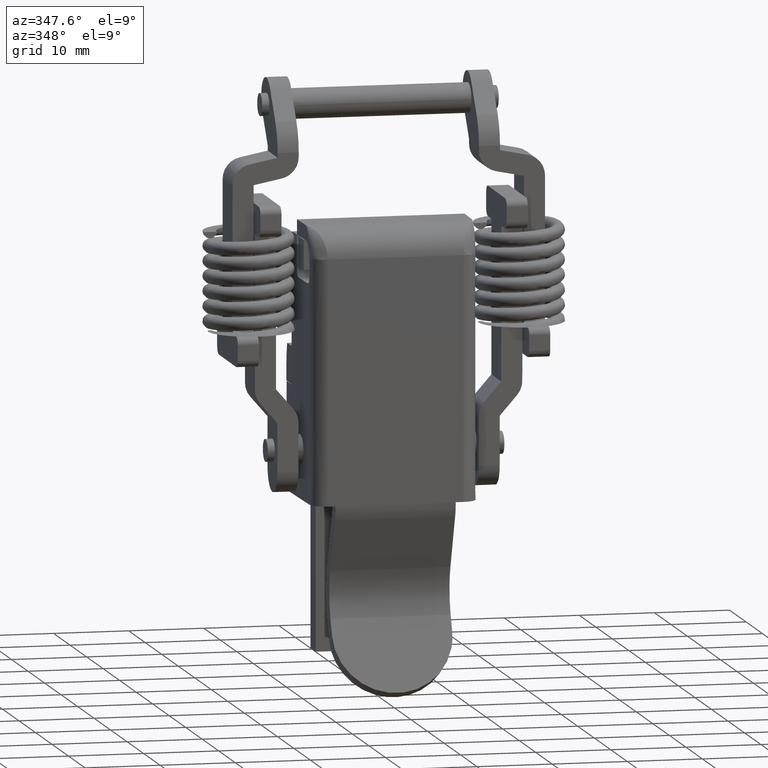
[diagram: clean part render]
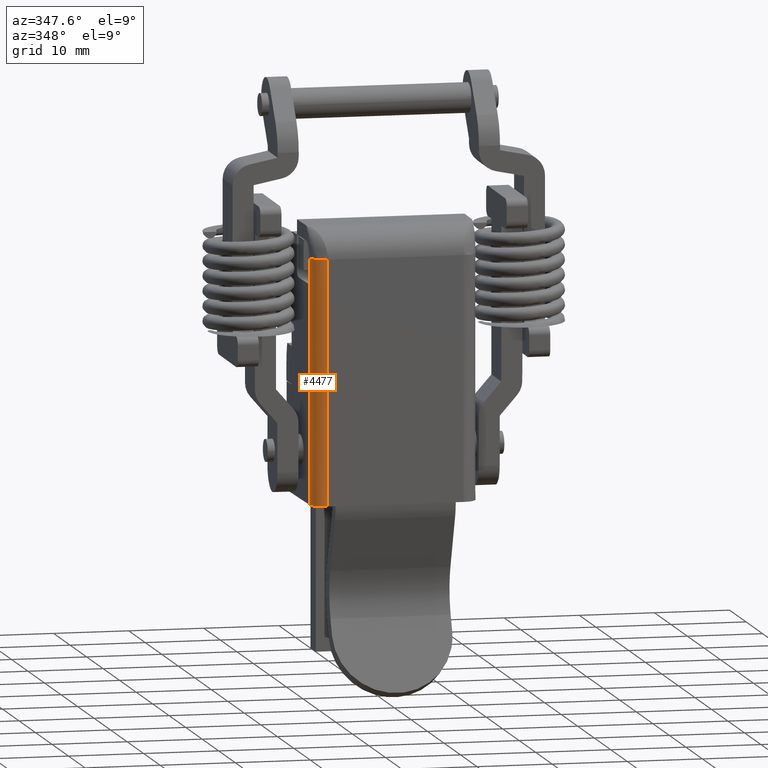
[diagram: same view with one face highlighted and labeled with its STEP entity id]
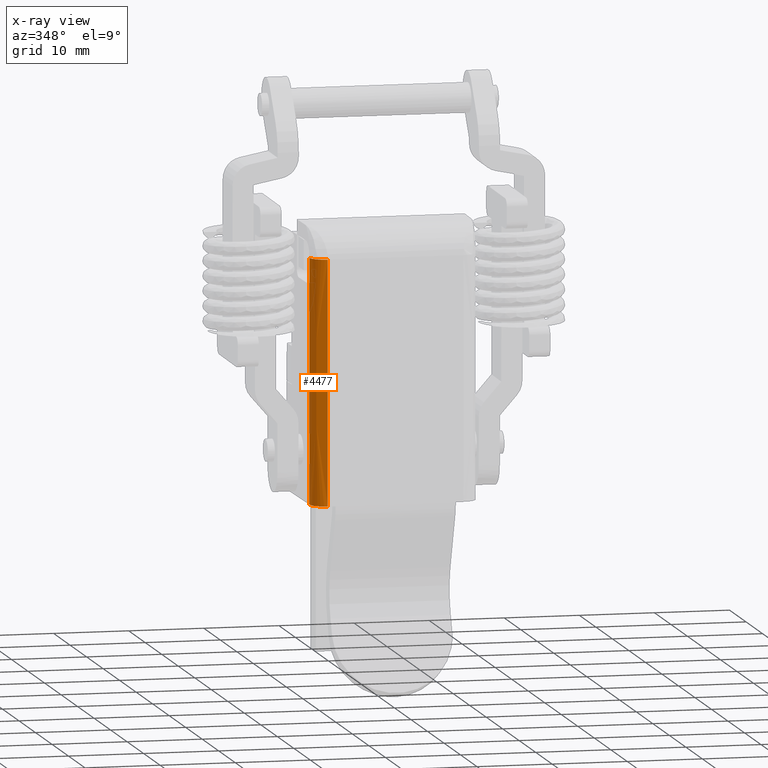
[diagram: x-ray of the same camera — body ghosted, the highlighted face saturated]
A machine part, auxiliary view. The second image highlights one B-rep face of the part: STEP entity #4477.
The next image is the same camera in x-ray: the body ghosted, the highlighted face saturated — about 0% of this face is hidden behind the body in this view.
In plain terms, the highlighted face is a freeform B-spline surface patch.
Its self-contained STEP definition (entity closure, byte-faithful):
#4363=CARTESIAN_POINT('',(-8.734483155846089,11.033895014556659,-19.0));
#4364=VERTEX_POINT('',#4363);
#4365=CARTESIAN_POINT('',(-10.699999999999999,9.034192308661870,-19.0));
#4366=VERTEX_POINT('',#4365);
#4367=CARTESIAN_POINT('',(-8.734483155846089,11.033895014556659,-19.0));
#4368=CARTESIAN_POINT('',(-10.700000000000113,11.000001364538047,-19.000000000000007));
#4369=CARTESIAN_POINT('',(-10.699999999999999,9.034192308661881,-19.0));
#4377=(BOUNDED_CURVE()B_SPLINE_CURVE(2,(#4367,#4368,#4369),.UNSPECIFIED.,.F.,.U.)CURVE()GEOMETRIC_REPRESENTATION_ITEM()QUASI_UNIFORM_CURVE()RATIONAL_B_SPLINE_CURVE((1.0,0.713176548241385,1.0))REPRESENTATION_ITEM(''));
#4378=EDGE_CURVE('',#4364,#4366,#4377,.T.);
#4423=CARTESIAN_POINT('',(-8.734483155846089,11.033895014556659,-51.500000000000000));
#4424=CARTESIAN_POINT('',(-10.700000000000113,11.000001364538047,-51.500000000000036));
#4425=CARTESIAN_POINT('',(-10.699999999999999,9.034192308661881,-51.500000000000000));
#4426=CARTESIAN_POINT('',(-8.734483155846089,11.033895014556659,-40.666666666666650));
#4427=CARTESIAN_POINT('',(-10.700000000000113,11.000001364538047,-40.666666666666707));
#4428=CARTESIAN_POINT('',(-10.699999999999999,9.034192308661881,-40.666666666666650));
#4429=CARTESIAN_POINT('',(-8.734483155846089,11.033895014556659,-29.833333333333350));
#4430=CARTESIAN_POINT('',(-10.700000000000113,11.000001364538047,-29.833333333333393));
#4431=CARTESIAN_POINT('',(-10.699999999999999,9.034192308661881,-29.833333333333350));
#4432=CARTESIAN_POINT('',(-8.734483155846089,11.033895014556659,-19.0));
#4433=CARTESIAN_POINT('',(-10.700000000000113,11.000001364538047,-19.000000000000007));
#4434=CARTESIAN_POINT('',(-10.699999999999999,9.034192308661881,-19.0));
#4442=(BOUNDED_SURFACE()B_SPLINE_SURFACE(2,3,((#4423,#4426,#4429,#4432),(#4424,#4427,#4430,#4433),(#4425,#4428,#4431,#4434)),.UNSPECIFIED.,.F.,.F.,.U.)B_SPLINE_SURFACE_WITH_KNOTS((3,3),(4,4),(0.0,3.273378726577912),(0.0,32.500000000000092),.UNSPECIFIED.)GEOMETRIC_REPRESENTATION_ITEM()RATIONAL_B_SPLINE_SURFACE(((1.0,1.0,1.0,1.0),(0.713176548241385,0.713176548241385,0.713176548241385,0.713176548241385),(1.0,1.0,1.0,1.0)))REPRESENTATION_ITEM('')SURFACE());
#4443=CARTESIAN_POINT('',(-10.699999999999999,9.034192308661870,-51.500000000000000));
#4444=VERTEX_POINT('',#4443);
#4445=CARTESIAN_POINT('',(-8.734483155846100,11.033895014556901,-51.500000000000000));
#4446=VERTEX_POINT('',#4445);
#4447=CARTESIAN_POINT('',(-10.699999999999999,9.034192308661881,-51.499999999999957));
#4448=CARTESIAN_POINT('',(-10.700000000000113,11.000001364538047,-51.499999999999957));
#4449=CARTESIAN_POINT('',(-8.734483155846100,11.033895014556901,-51.500000000000000));
#4457=(BOUNDED_CURVE()B_SPLINE_CURVE(2,(#4447,#4448,#4449),.UNSPECIFIED.,.F.,.U.)CURVE()GEOMETRIC_REPRESENTATION_ITEM()QUASI_UNIFORM_CURVE()RATIONAL_B_SPLINE_CURVE((1.0,0.713176548241385,1.0))REPRESENTATION_ITEM(''));
#4458=EDGE_CURVE('',#4444,#4446,#4457,.T.);
#4459=ORIENTED_EDGE('',*,*,#4458,.F.);
#4460=CARTESIAN_POINT('',(-10.699999999999999,9.034192308661881,-19.0));
#4461=CARTESIAN_POINT('',(-10.699999999999999,9.034192308661881,-29.833333333333350));
#4462=CARTESIAN_POINT('',(-10.699999999999999,9.034192308661881,-40.666666666666650));
#4463=CARTESIAN_POINT('',(-10.699999999999999,9.034192308661881,-51.500000000000000));
#4464=B_SPLINE_CURVE_WITH_KNOTS('',3,(#4460,#4461,#4462,#4463),.UNSPECIFIED.,.F.,.U.,(4,4),(0.666666666666667,1.000000000000000),.UNSPECIFIED.);
#4465=EDGE_CURVE('',#4366,#4444,#4464,.T.);
#4466=ORIENTED_EDGE('',*,*,#4465,.F.);
#4467=ORIENTED_EDGE('',*,*,#4378,.F.);
#4468=CARTESIAN_POINT('',(-8.734483155846100,11.033895014556901,-51.500000000000000));
#4469=CARTESIAN_POINT('',(-8.734483155846089,11.033895014556659,-40.666666666666650));
#4470=CARTESIAN_POINT('',(-8.734483155846089,11.033895014556659,-29.833333333333350));
#4471=CARTESIAN_POINT('',(-8.734483155846089,11.033895014556659,-19.0));
#4472=B_SPLINE_CURVE_WITH_KNOTS('',3,(#4468,#4469,#4470,#4471),.UNSPECIFIED.,.F.,.U.,(4,4),(0.666666666666667,1.0),.UNSPECIFIED.);
#4473=EDGE_CURVE('',#4446,#4364,#4472,.T.);
#4474=ORIENTED_EDGE('',*,*,#4473,.F.);
#4475=EDGE_LOOP('',(#4459,#4466,#4467,#4474));
#4476=FACE_OUTER_BOUND('',#4475,.T.);
#4477=ADVANCED_FACE('',(#4476),#4442,.T.);